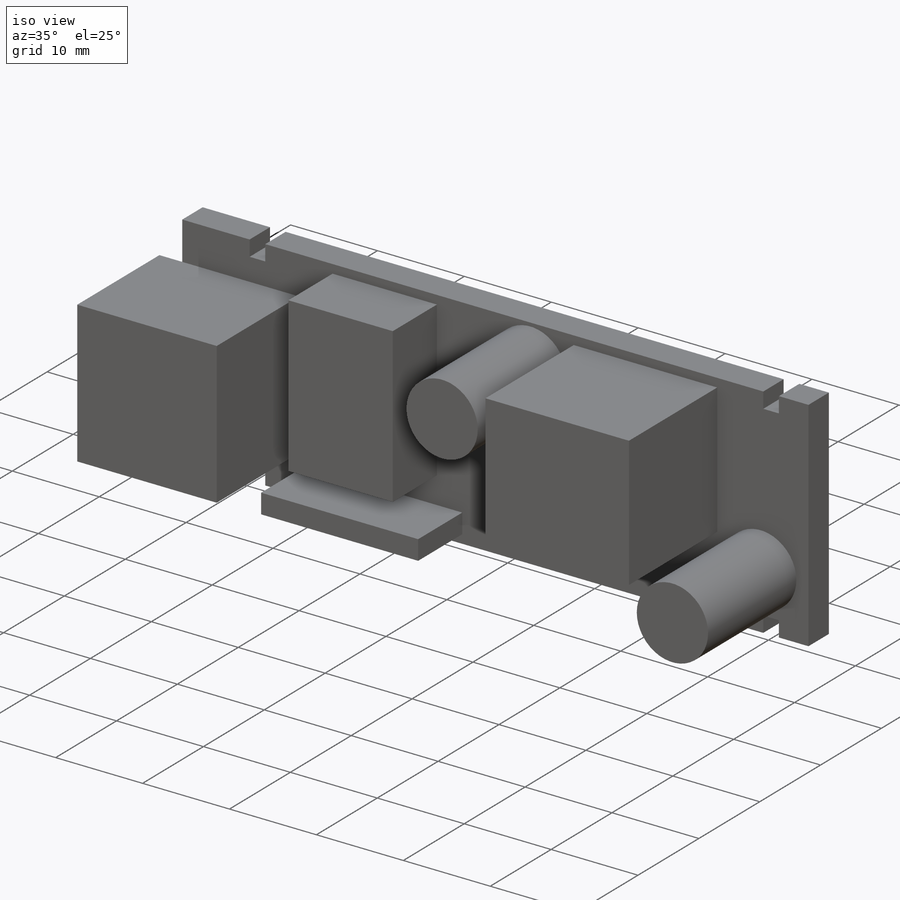
[diagram: iso view]
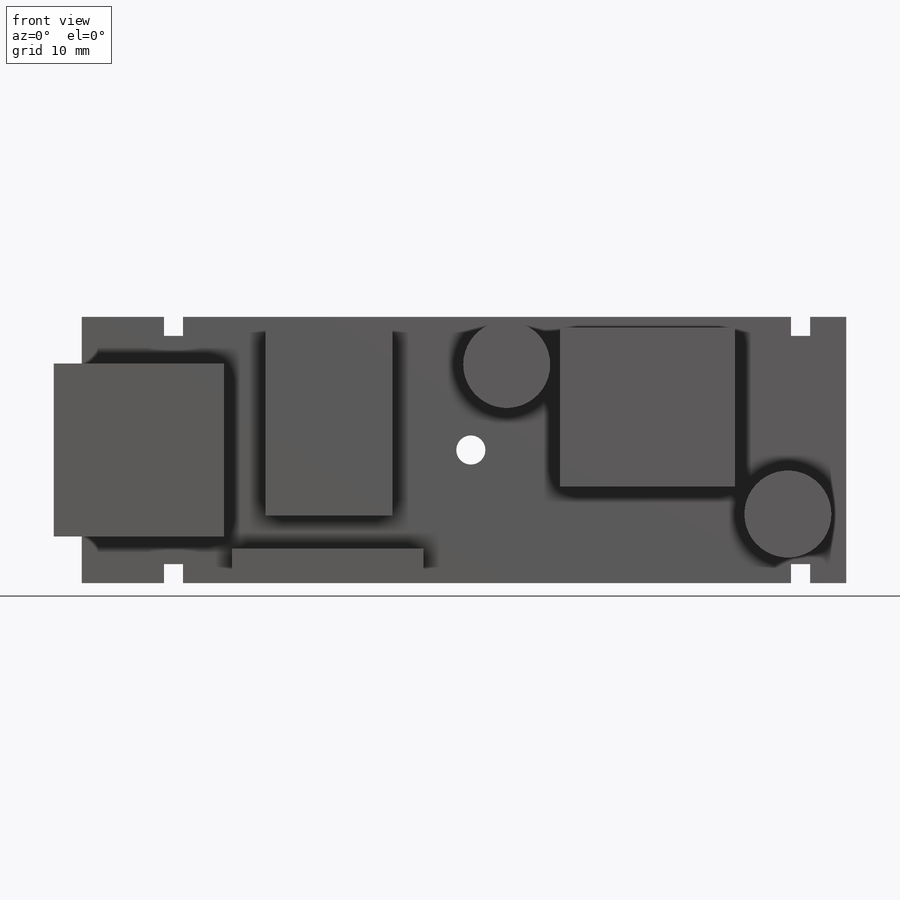
[diagram: front view]
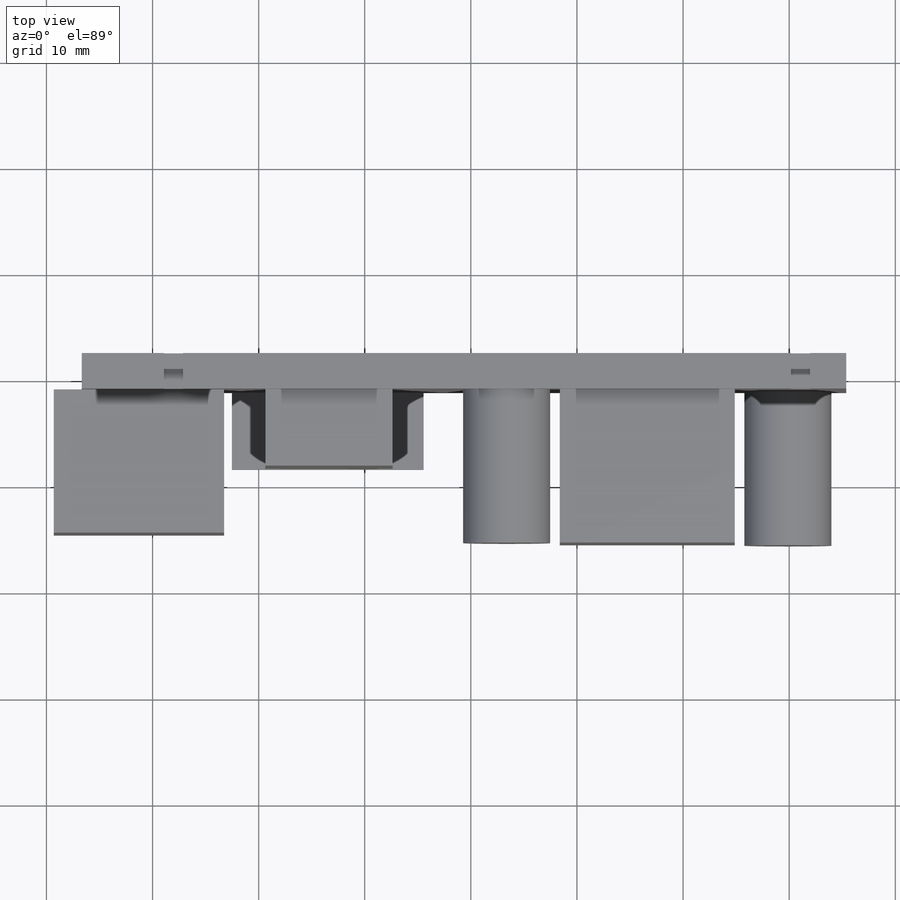
[diagram: top view]
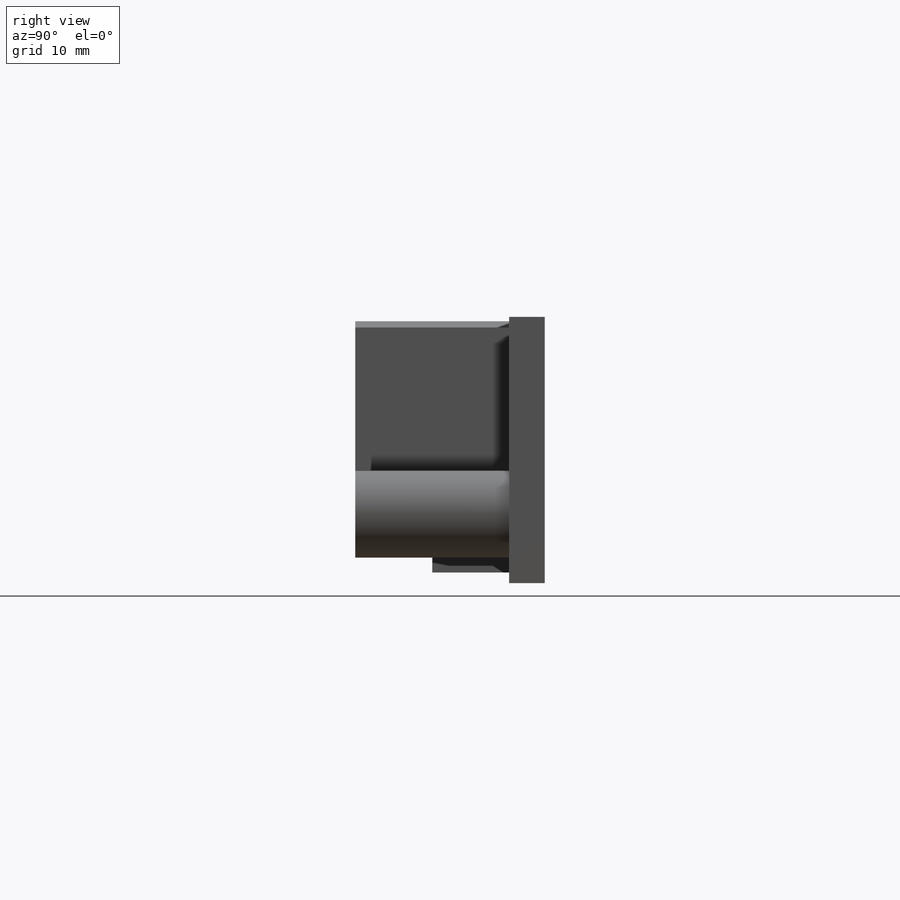
[diagram: right view]
SOLIDWORKS PART (.sldprt)
format: sldprt  version: not decoded by parser v0  size: 489,984 bytes
history: native  units: mm
features: sketch x5, extrude x5, material x1 (+12 scaffold rows collapsed)
feature tree (23):
  scaffold x12  (default folders/planes/origin — collapsed)
  material  "Material <not specified>"
  sketch  "Sketch1"  dims[c1.D7=2.75mm c1.D1=25.0mm c1.D2=72.0mm c2.D1=1.8mm c2.D2=1.8mm c2.D3=3.4mm c2.D4=7.75mm c2.D5=25.1mm c2.D6=72.05mm c2.D8=35.375mm]
  extrude  "Boss-BoardThk"  Depth=1.1mm
  extrude  "Boss-LowerClearance"  [1 undecoded]
  sketch  "Sketch1<3>"  dims[D1=2.25mm]
  sketch  "Sketch2"  dims[c1.D1=8.2mm c1.D2=15.0mm c1.D3=16.5mm c1.D4=5.0mm c1.D5=5.0mm c1.D6=5.5mm c1.D7=~5.500242mm c2.D7=90.0deg c3.D7=6.5mm c3.D8=4.5mm c3.D9=17.3mm c3.D10=1.0mm c3.D11=17.75mm c3.D12=2.25mm c3.D13=18.07mm c3.D14=14.15mm c3.D15=1.0mm c3.D16=16.3mm c3.D17=16.05mm c3.D18=2.63mm c3.D19=12.0mm c3.D20=1.0mm]
  extrude  "Boss-Extrude3"  Depth=14.5mm
  extrude  "Boss-Extrude4"  [1 undecoded]
  sketch  "Sketch2<4>"  dims[D1=7.25mm]
  extrude  "Boss-Extrude5"  [1 undecoded]
  sketch  "Sketch2<5>"  dims[D1=13.5mm]
decode coverage: 7 of 10 modeling features carry decoded parameters
note: ~ marks probable driven/reference dimensions
note: 3 parameter values undecoded
summary: no parameter record found for 3 features
note: suppression state not decoded; provenance and decode notes live in map.json
